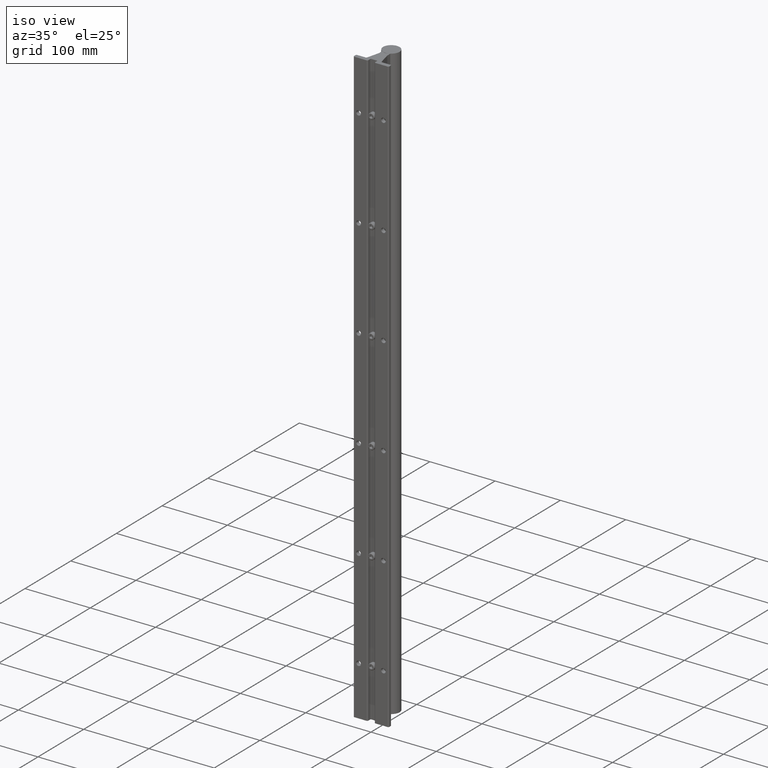
[diagram: clean part render]
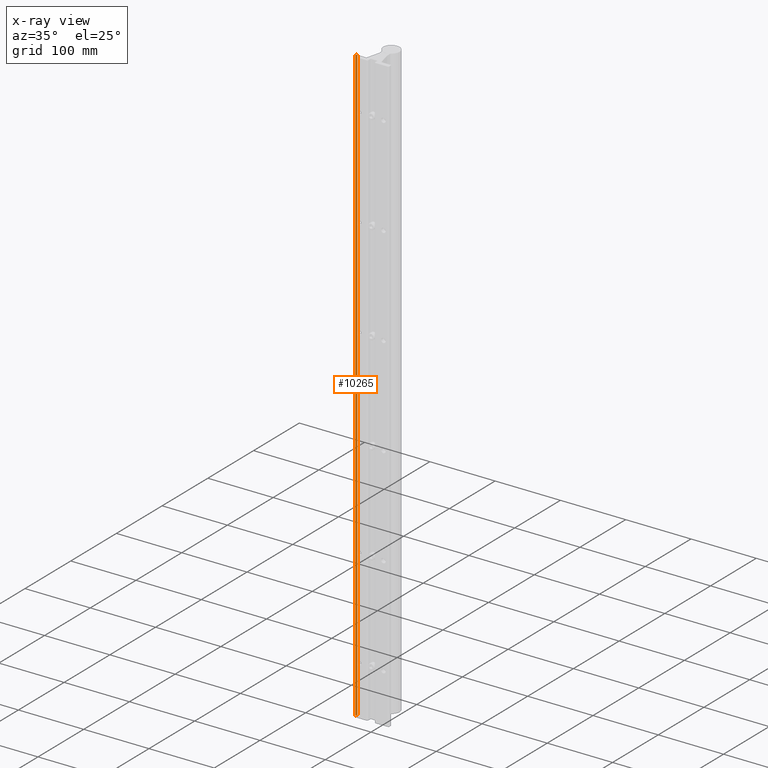
[diagram: x-ray — body ghosted, one internal face saturated and labeled with its STEP entity id]
A machine part, iso view, then the same camera in x-ray: the body is ghosted and one INTERNAL B-rep face — a face not visible from any outside direction — is saturated and labeled: STEP entity #10265.
In plain terms, the highlighted cylindrical surface (edge-blend (fillet) strip) has radius 1.524 mm, axis along (0, 0, 1).
Its self-contained STEP definition (entity closure, byte-faithful):
#831 = ORIENTED_EDGE ( 'NONE', *, *, #10618, .F. ) ;
#1440 = AXIS2_PLACEMENT_3D ( 'NONE', #4793, #12230, #13244 ) ;
#1852 = CARTESIAN_POINT ( 'NONE',  ( -1.062500000003302913, 0.1899999999999999467, -36.00000000000000000 ) ) ;
#1968 = EDGE_CURVE ( 'NONE', #6151, #3703, #7156, .T. ) ;
#2947 = DIRECTION ( 'NONE',  ( 0.000000000000000000, 0.000000000000000000, 1.000000000000000000 ) ) ;
#3700 = CARTESIAN_POINT ( 'NONE',  ( -1.062500000003302913, 0.1899999999999999467, -38.49573696227415098 ) ) ;
#3703 = VERTEX_POINT ( 'NONE', #12655 ) ;
#3852 = VECTOR ( 'NONE', #12338, 39.37007874015748143 ) ;
#4011 = EDGE_CURVE ( 'NONE', #11660, #9641, #7446, .T. ) ;
#4448 = CARTESIAN_POINT ( 'NONE',  ( -1.002500000003302638, 0.1899999999999999467, -38.49573696227415098 ) ) ;
#4512 = AXIS2_PLACEMENT_3D ( 'NONE', #4448, #8711, #12974 ) ;
#4793 = CARTESIAN_POINT ( 'NONE',  ( -1.002500000003302638, 0.1899999999999999467, -36.00000000000000000 ) ) ;
#6151 = VERTEX_POINT ( 'NONE', #9612 ) ;
#6880 = LINE ( 'NONE', #3700, #8104 ) ;
#7156 = CIRCLE ( 'NONE', #10039, 0.06000000000000017819 ) ;
#7446 = CIRCLE ( 'NONE', #1440, 0.06000000000000017819 ) ;
#7651 = CARTESIAN_POINT ( 'NONE',  ( -1.002500000003303082, 0.2500000000000000555, -36.00000000000000000 ) ) ;
#8073 = CARTESIAN_POINT ( 'NONE',  ( -1.002500000003302860, 0.2500000000000001110, -38.49573696227415098 ) ) ;
#8104 = VECTOR ( 'NONE', #10068, 39.37007874015748143 ) ;
#8711 = DIRECTION ( 'NONE',  ( 0.000000000000000000, 0.000000000000000000, 1.000000000000000000 ) ) ;
#9288 = ORIENTED_EDGE ( 'NONE', *, *, #4011, .F. ) ;
#9612 = CARTESIAN_POINT ( 'NONE',  ( -1.002500000003302860, 0.2500000000000000555, 0.000000000000000000 ) ) ;
#9641 = VERTEX_POINT ( 'NONE', #7651 ) ;
#9735 = EDGE_CURVE ( 'NONE', #11660, #3703, #6880, .T. ) ;
#9766 = CYLINDRICAL_SURFACE ( 'NONE', #4512, 0.06000000000000017819 ) ;
#10039 = AXIS2_PLACEMENT_3D ( 'NONE', #13476, #2947, #11416 ) ;
#10068 = DIRECTION ( 'NONE',  ( 0.000000000000000000, 0.000000000000000000, 1.000000000000000000 ) ) ;
#10173 = ORIENTED_EDGE ( 'NONE', *, *, #1968, .F. ) ;
#10265 = ADVANCED_FACE ( 'NONE', ( #13174 ), #9766, .T. ) ;
#10618 = EDGE_CURVE ( 'NONE', #9641, #6151, #12145, .T. ) ;
#10815 = EDGE_LOOP ( 'NONE', ( #9288, #12575, #10173, #831 ) ) ;
#11416 = DIRECTION ( 'NONE',  ( 1.000000000000000000, 0.000000000000000000, 0.000000000000000000 ) ) ;
#11660 = VERTEX_POINT ( 'NONE', #1852 ) ;
#12145 = LINE ( 'NONE', #8073, #3852 ) ;
#12230 = DIRECTION ( 'NONE',  ( -0.000000000000000000, -0.000000000000000000, -1.000000000000000000 ) ) ;
#12338 = DIRECTION ( 'NONE',  ( 0.000000000000000000, 0.000000000000000000, 1.000000000000000000 ) ) ;
#12575 = ORIENTED_EDGE ( 'NONE', *, *, #9735, .T. ) ;
#12655 = CARTESIAN_POINT ( 'NONE',  ( -1.062500000003302913, 0.1899999999999999467, 0.000000000000000000 ) ) ;
#12974 = DIRECTION ( 'NONE',  ( 1.000000000000000000, 0.000000000000000000, 0.000000000000000000 ) ) ;
#13174 = FACE_OUTER_BOUND ( 'NONE', #10815, .T. ) ;
#13244 = DIRECTION ( 'NONE',  ( 1.000000000000000000, 0.000000000000000000, 0.000000000000000000 ) ) ;
#13476 = CARTESIAN_POINT ( 'NONE',  ( -1.002500000003302638, 0.1899999999999999467, 0.000000000000000000 ) ) ;